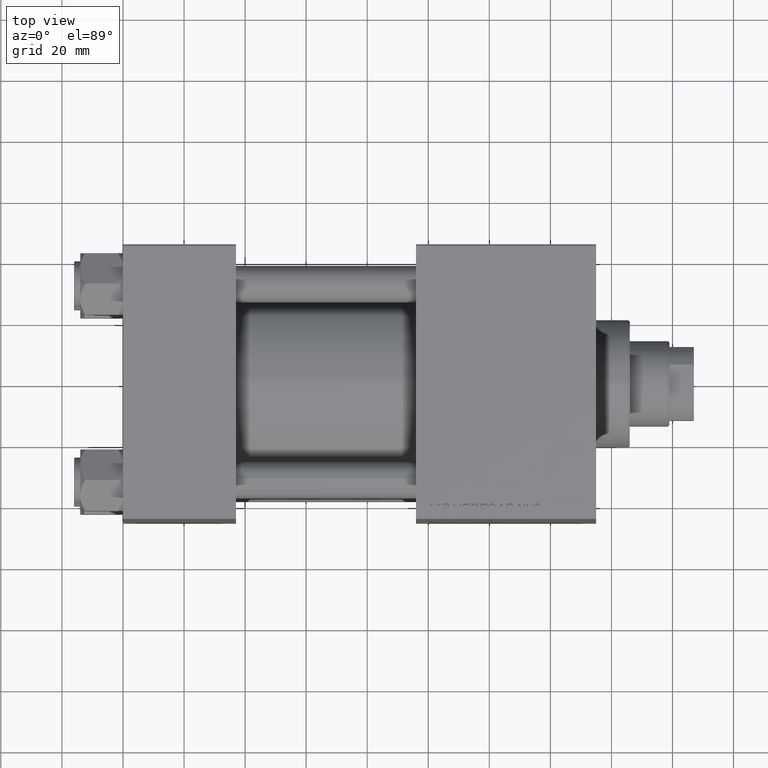
[diagram: clean part render]
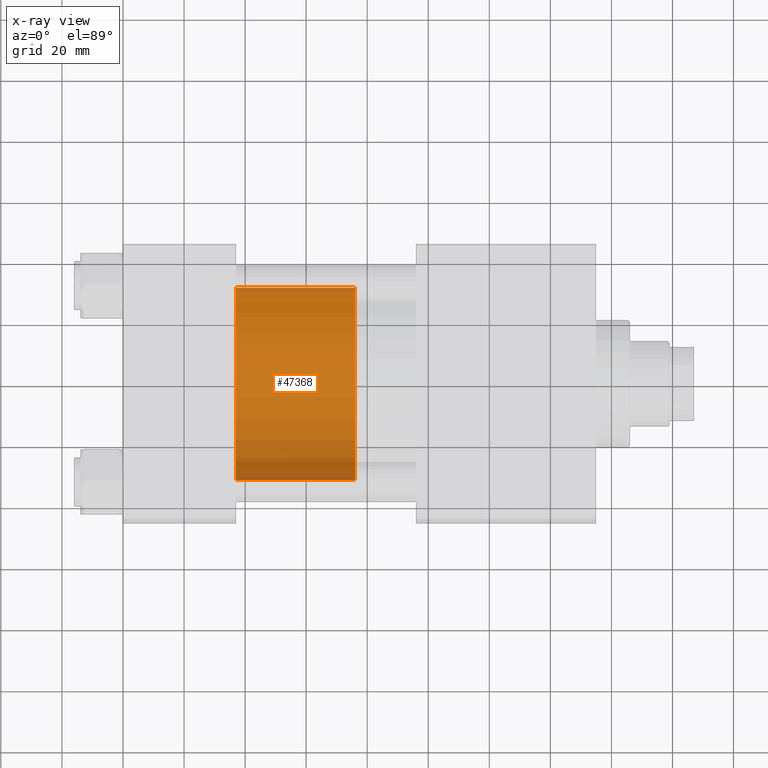
[diagram: x-ray — body ghosted, one internal face saturated and labeled with its STEP entity id]
A machine part, top view, then the same camera in x-ray: the body is ghosted and one INTERNAL B-rep face — a face not visible from any outside direction — is saturated and labeled: STEP entity #47368.
In plain terms, the highlighted cylindrical surface (partial cylindrical patch) has radius 31.5 mm, axis along (-1, 0, 0).
Its self-contained STEP definition (entity closure, byte-faithful):
#1616 = DIRECTION ( 'NONE',  ( 1.000000000000000000, 0.000000000000000000, 0.000000000000000000 ) ) ;
#3038 = CARTESIAN_POINT ( 'NONE',  ( 31.50000000000000000, 3.857637417314162689E-15, 39.00000000000000000 ) ) ;
#4110 = CARTESIAN_POINT ( 'NONE',  ( -31.50000000000000000, 0.000000000000000000, 0.000000000000000000 ) ) ;
#4288 = EDGE_LOOP ( 'NONE', ( #8003, #23390, #46948, #12878 ) ) ;
#4502 = CARTESIAN_POINT ( 'NONE',  ( 0.000000000000000000, 0.000000000000000000, 39.00000000000000000 ) ) ;
#7425 = VERTEX_POINT ( 'NONE', #30029 ) ;
#7873 = LINE ( 'NONE', #23366, #16803 ) ;
#8003 = ORIENTED_EDGE ( 'NONE', *, *, #35552, .F. ) ;
#9000 = VERTEX_POINT ( 'NONE', #36266 ) ;
#12136 = FACE_OUTER_BOUND ( 'NONE', #4288, .T. ) ;
#12878 = ORIENTED_EDGE ( 'NONE', *, *, #40605, .F. ) ;
#16267 = DIRECTION ( 'NONE',  ( -0.000000000000000000, -0.000000000000000000, -1.000000000000000000 ) ) ;
#16803 = VECTOR ( 'NONE', #16267, 1000.000000000000000 ) ;
#17964 = CARTESIAN_POINT ( 'NONE',  ( 0.000000000000000000, 0.000000000000000000, 39.00000000000000000 ) ) ;
#19725 = VERTEX_POINT ( 'NONE', #25489 ) ;
#20248 = DIRECTION ( 'NONE',  ( -0.000000000000000000, -0.000000000000000000, -1.000000000000000000 ) ) ;
#21631 = AXIS2_PLACEMENT_3D ( 'NONE', #35907, #28304, #1616 ) ;
#22086 = LINE ( 'NONE', #3038, #43505 ) ;
#23366 = CARTESIAN_POINT ( 'NONE',  ( -31.50000000000000000, 0.000000000000000000, 39.00000000000000000 ) ) ;
#23390 = ORIENTED_EDGE ( 'NONE', *, *, #38351, .T. ) ;
#24067 = CIRCLE ( 'NONE', #24867, 31.50000000000000000 ) ;
#24867 = AXIS2_PLACEMENT_3D ( 'NONE', #17964, #47953, #40343 ) ;
#25489 = CARTESIAN_POINT ( 'NONE',  ( -31.50000000000000000, 0.000000000000000000, 39.00000000000000000 ) ) ;
#26394 = DIRECTION ( 'NONE',  ( -0.000000000000000000, -0.000000000000000000, -1.000000000000000000 ) ) ;
#27871 = CYLINDRICAL_SURFACE ( 'NONE', #37275, 31.50000000000000000 ) ;
#28304 = DIRECTION ( 'NONE',  ( 0.000000000000000000, 0.000000000000000000, 1.000000000000000000 ) ) ;
#30029 = CARTESIAN_POINT ( 'NONE',  ( 31.50000000000000000, 3.857637417314162689E-15, 39.00000000000000000 ) ) ;
#35552 = EDGE_CURVE ( 'NONE', #7425, #19725, #24067, .T. ) ;
#35907 = CARTESIAN_POINT ( 'NONE',  ( 0.000000000000000000, 0.000000000000000000, 0.000000000000000000 ) ) ;
#36238 = DIRECTION ( 'NONE',  ( -1.000000000000000000, 0.000000000000000000, 0.000000000000000000 ) ) ;
#36266 = CARTESIAN_POINT ( 'NONE',  ( 31.50000000000000000, 3.857637417314162689E-15, 0.000000000000000000 ) ) ;
#37275 = AXIS2_PLACEMENT_3D ( 'NONE', #4502, #20248, #36238 ) ;
#38351 = EDGE_CURVE ( 'NONE', #7425, #9000, #22086, .T. ) ;
#39839 = EDGE_CURVE ( 'NONE', #9000, #43937, #45992, .T. ) ;
#40343 = DIRECTION ( 'NONE',  ( 1.000000000000000000, 0.000000000000000000, 0.000000000000000000 ) ) ;
#40605 = EDGE_CURVE ( 'NONE', #19725, #43937, #7873, .T. ) ;
#43505 = VECTOR ( 'NONE', #26394, 1000.000000000000000 ) ;
#43937 = VERTEX_POINT ( 'NONE', #4110 ) ;
#45992 = CIRCLE ( 'NONE', #21631, 31.50000000000000000 ) ;
#46948 = ORIENTED_EDGE ( 'NONE', *, *, #39839, .T. ) ;
#47368 = ADVANCED_FACE ( 'NONE', ( #12136 ), #27871, .T. ) ;
#47953 = DIRECTION ( 'NONE',  ( 0.000000000000000000, 0.000000000000000000, 1.000000000000000000 ) ) ;